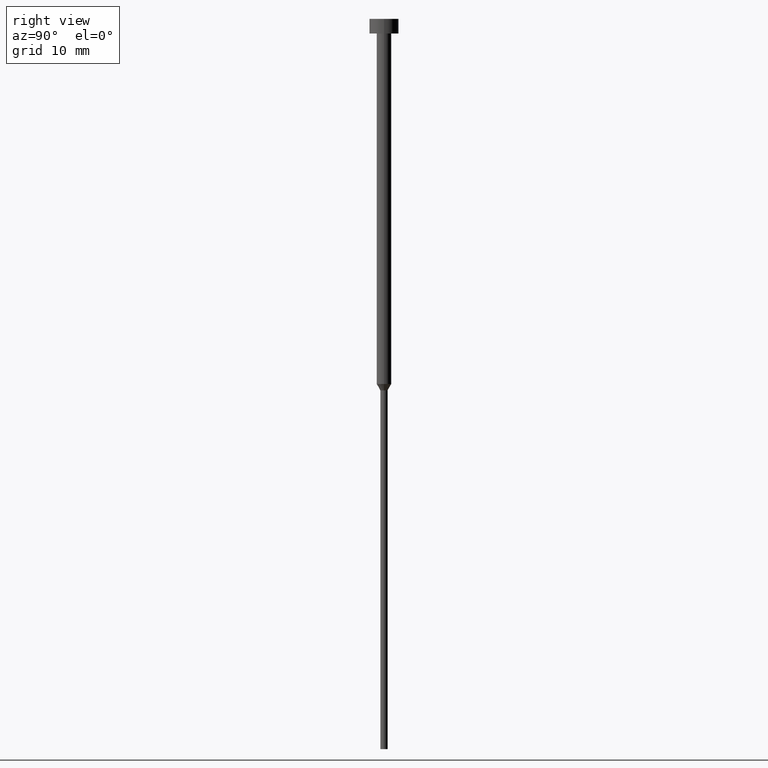
[diagram: clean part render]
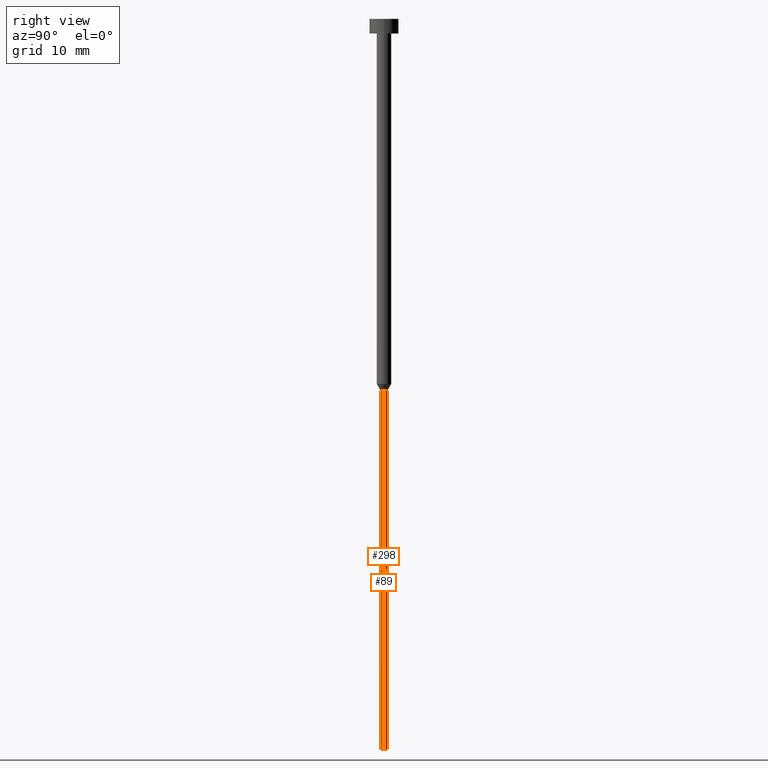
[diagram: same view with one multi-face feature highlighted, each face labeled with its STEP entity id]
A machine part, right view. The highlighted faces form ONE feature: a constant-radius fillet chain: 2 tangent blend faces with common blend radius 0.5 mm. The faces share edges in the B-rep.
Their STEP definitions:
[1] entity #89 (Cylinder):
#6 = CARTESIAN_POINT ( 'NONE',  ( -0.5000000000000000000, 6.123233995736766036E-17, -50.86602540378444814 ) ) ;
#21 = VERTEX_POINT ( 'NONE', #297 ) ;
#39 = CARTESIAN_POINT ( 'NONE',  ( 0.000000000000000000, 0.000000000000000000, 0.000000000000000000 ) ) ;
#50 = LINE ( 'NONE', #247, #290 ) ;
#60 = CIRCLE ( 'NONE', #256, 0.5000000000000000000 ) ;
#77 = EDGE_CURVE ( 'NONE', #21, #196, #176, .T. ) ;
#84 = DIRECTION ( 'NONE',  ( 1.000000000000000000, 0.000000000000000000, 0.000000000000000000 ) ) ;
#89 = ADVANCED_FACE ( 'NONE', ( #225 ), #199, .T. ) ;
#96 = VERTEX_POINT ( 'NONE', #264 ) ;
#103 = CIRCLE ( 'NONE', #219, 0.5000000000000000000 ) ;
#119 = ORIENTED_EDGE ( 'NONE', *, *, #233, .T. ) ;
#126 = ORIENTED_EDGE ( 'NONE', *, *, #350, .T. ) ;
#127 = CARTESIAN_POINT ( 'NONE',  ( 0.000000000000000000, 0.000000000000000000, -50.86602540378444814 ) ) ;
#136 = DIRECTION ( 'NONE',  ( 1.000000000000000000, 0.000000000000000000, 0.000000000000000000 ) ) ;
#145 = EDGE_LOOP ( 'NONE', ( #119, #126, #195, #236 ) ) ;
#167 = AXIS2_PLACEMENT_3D ( 'NONE', #39, #313, #84 ) ;
#176 = LINE ( 'NONE', #200, #212 ) ;
#195 = ORIENTED_EDGE ( 'NONE', *, *, #288, .F. ) ;
#196 = VERTEX_POINT ( 'NONE', #305 ) ;
#199 = CYLINDRICAL_SURFACE ( 'NONE', #167, 0.5000000000000000000 ) ;
#200 = CARTESIAN_POINT ( 'NONE',  ( 0.5000000000000000000, 0.000000000000000000, 0.000000000000000000 ) ) ;
#201 = DIRECTION ( 'NONE',  ( 1.000000000000000000, 0.000000000000000000, 0.000000000000000000 ) ) ;
#203 = VERTEX_POINT ( 'NONE', #6 ) ;
#212 = VECTOR ( 'NONE', #258, 1000.000000000000000 ) ;
#219 = AXIS2_PLACEMENT_3D ( 'NONE', #333, #253, #136 ) ;
#225 = FACE_OUTER_BOUND ( 'NONE', #145, .T. ) ;
#233 = EDGE_CURVE ( 'NONE', #21, #96, #103, .T. ) ;
#236 = ORIENTED_EDGE ( 'NONE', *, *, #77, .F. ) ;
#247 = CARTESIAN_POINT ( 'NONE',  ( -0.5000000000000000000, 6.123233995736766036E-17, 0.000000000000000000 ) ) ;
#249 = DIRECTION ( 'NONE',  ( -0.000000000000000000, -0.000000000000000000, 1.000000000000000000 ) ) ;
#253 = DIRECTION ( 'NONE',  ( -0.000000000000000000, -0.000000000000000000, 1.000000000000000000 ) ) ;
#256 = AXIS2_PLACEMENT_3D ( 'NONE', #127, #317, #201 ) ;
#258 = DIRECTION ( 'NONE',  ( -0.000000000000000000, -0.000000000000000000, 1.000000000000000000 ) ) ;
#264 = CARTESIAN_POINT ( 'NONE',  ( -0.5000000000000000000, 6.123233995736766036E-17, -100.0000000000000000 ) ) ;
#288 = EDGE_CURVE ( 'NONE', #196, #203, #60, .T. ) ;
#290 = VECTOR ( 'NONE', #249, 1000.000000000000000 ) ;
#297 = CARTESIAN_POINT ( 'NONE',  ( 0.5000000000000000000, 0.000000000000000000, -100.0000000000000000 ) ) ;
#305 = CARTESIAN_POINT ( 'NONE',  ( 0.5000000000000000000, 0.000000000000000000, -50.86602540378444814 ) ) ;
#313 = DIRECTION ( 'NONE',  ( -0.000000000000000000, -0.000000000000000000, 1.000000000000000000 ) ) ;
#317 = DIRECTION ( 'NONE',  ( -0.000000000000000000, -0.000000000000000000, 1.000000000000000000 ) ) ;
#333 = CARTESIAN_POINT ( 'NONE',  ( 0.000000000000000000, 0.000000000000000000, -100.0000000000000000 ) ) ;
#350 = EDGE_CURVE ( 'NONE', #96, #203, #50, .T. ) ;
[2] entity #298 (Cylinder):
#6 = CARTESIAN_POINT ( 'NONE',  ( -0.5000000000000000000, 6.123233995736766036E-17, -50.86602540378444814 ) ) ;
#15 = EDGE_CURVE ( 'NONE', #203, #196, #254, .T. ) ;
#21 = VERTEX_POINT ( 'NONE', #297 ) ;
#23 = DIRECTION ( 'NONE',  ( 1.000000000000000000, 0.000000000000000000, 0.000000000000000000 ) ) ;
#28 = CARTESIAN_POINT ( 'NONE',  ( 0.000000000000000000, 0.000000000000000000, -100.0000000000000000 ) ) ;
#42 = AXIS2_PLACEMENT_3D ( 'NONE', #230, #147, #23 ) ;
#47 = DIRECTION ( 'NONE',  ( -0.000000000000000000, -0.000000000000000000, 1.000000000000000000 ) ) ;
#50 = LINE ( 'NONE', #247, #290 ) ;
#59 = CIRCLE ( 'NONE', #260, 0.5000000000000000000 ) ;
#77 = EDGE_CURVE ( 'NONE', #21, #196, #176, .T. ) ;
#96 = VERTEX_POINT ( 'NONE', #264 ) ;
#117 = CYLINDRICAL_SURFACE ( 'NONE', #42, 0.5000000000000000000 ) ;
#147 = DIRECTION ( 'NONE',  ( -0.000000000000000000, -0.000000000000000000, 1.000000000000000000 ) ) ;
#150 = ORIENTED_EDGE ( 'NONE', *, *, #188, .T. ) ;
#176 = LINE ( 'NONE', #200, #212 ) ;
#180 = ORIENTED_EDGE ( 'NONE', *, *, #15, .F. ) ;
#183 = DIRECTION ( 'NONE',  ( 1.000000000000000000, 0.000000000000000000, 0.000000000000000000 ) ) ;
#188 = EDGE_CURVE ( 'NONE', #96, #21, #59, .T. ) ;
#196 = VERTEX_POINT ( 'NONE', #305 ) ;
#200 = CARTESIAN_POINT ( 'NONE',  ( 0.5000000000000000000, 0.000000000000000000, 0.000000000000000000 ) ) ;
#203 = VERTEX_POINT ( 'NONE', #6 ) ;
#207 = ORIENTED_EDGE ( 'NONE', *, *, #77, .T. ) ;
#212 = VECTOR ( 'NONE', #258, 1000.000000000000000 ) ;
#227 = ORIENTED_EDGE ( 'NONE', *, *, #350, .F. ) ;
#230 = CARTESIAN_POINT ( 'NONE',  ( 0.000000000000000000, 0.000000000000000000, 0.000000000000000000 ) ) ;
#247 = CARTESIAN_POINT ( 'NONE',  ( -0.5000000000000000000, 6.123233995736766036E-17, 0.000000000000000000 ) ) ;
#249 = DIRECTION ( 'NONE',  ( -0.000000000000000000, -0.000000000000000000, 1.000000000000000000 ) ) ;
#254 = CIRCLE ( 'NONE', #295, 0.5000000000000000000 ) ;
#258 = DIRECTION ( 'NONE',  ( -0.000000000000000000, -0.000000000000000000, 1.000000000000000000 ) ) ;
#260 = AXIS2_PLACEMENT_3D ( 'NONE', #28, #276, #354 ) ;
#264 = CARTESIAN_POINT ( 'NONE',  ( -0.5000000000000000000, 6.123233995736766036E-17, -100.0000000000000000 ) ) ;
#276 = DIRECTION ( 'NONE',  ( -0.000000000000000000, -0.000000000000000000, 1.000000000000000000 ) ) ;
#290 = VECTOR ( 'NONE', #249, 1000.000000000000000 ) ;
#294 = CARTESIAN_POINT ( 'NONE',  ( 0.000000000000000000, 0.000000000000000000, -50.86602540378444814 ) ) ;
#295 = AXIS2_PLACEMENT_3D ( 'NONE', #294, #47, #183 ) ;
#296 = EDGE_LOOP ( 'NONE', ( #227, #150, #207, #180 ) ) ;
#297 = CARTESIAN_POINT ( 'NONE',  ( 0.5000000000000000000, 0.000000000000000000, -100.0000000000000000 ) ) ;
#298 = ADVANCED_FACE ( 'NONE', ( #315 ), #117, .T. ) ;
#305 = CARTESIAN_POINT ( 'NONE',  ( 0.5000000000000000000, 0.000000000000000000, -50.86602540378444814 ) ) ;
#315 = FACE_OUTER_BOUND ( 'NONE', #296, .T. ) ;
#350 = EDGE_CURVE ( 'NONE', #96, #203, #50, .T. ) ;
#354 = DIRECTION ( 'NONE',  ( 1.000000000000000000, 0.000000000000000000, 0.000000000000000000 ) ) ;